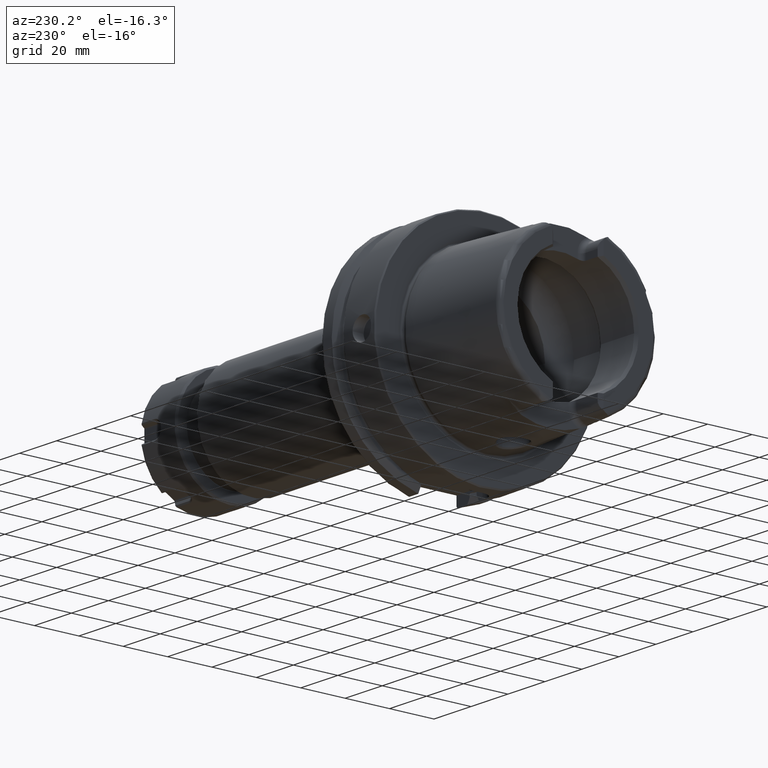
[diagram: clean part render]
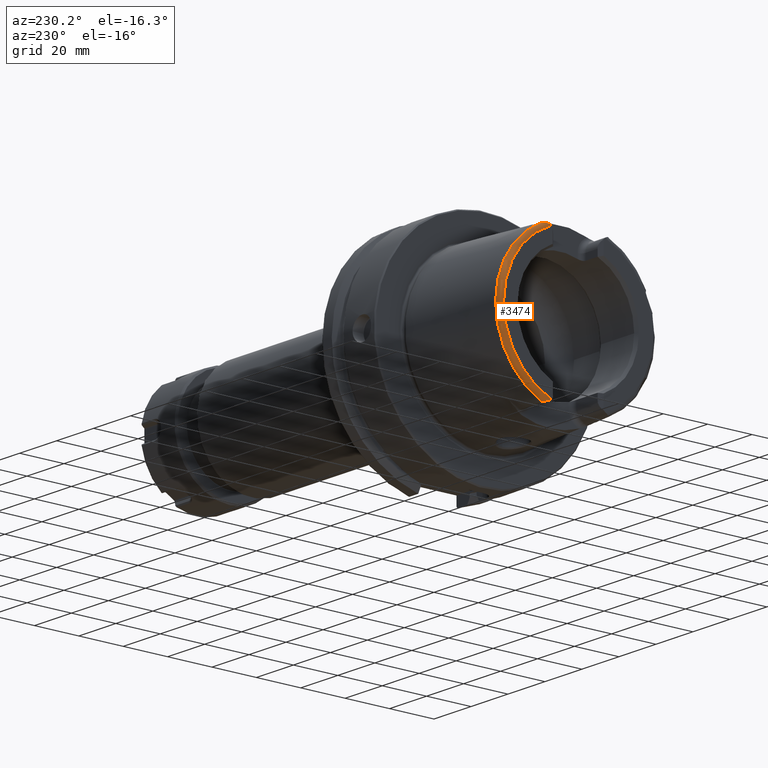
[diagram: same view with one face highlighted and labeled with its STEP entity id]
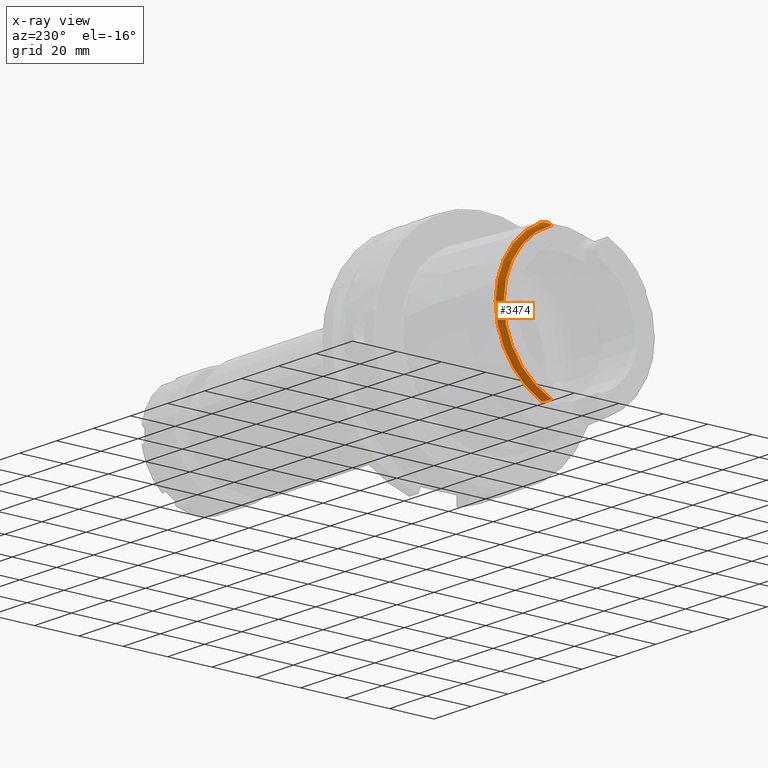
[diagram: x-ray of the same camera — body ghosted, the highlighted face saturated]
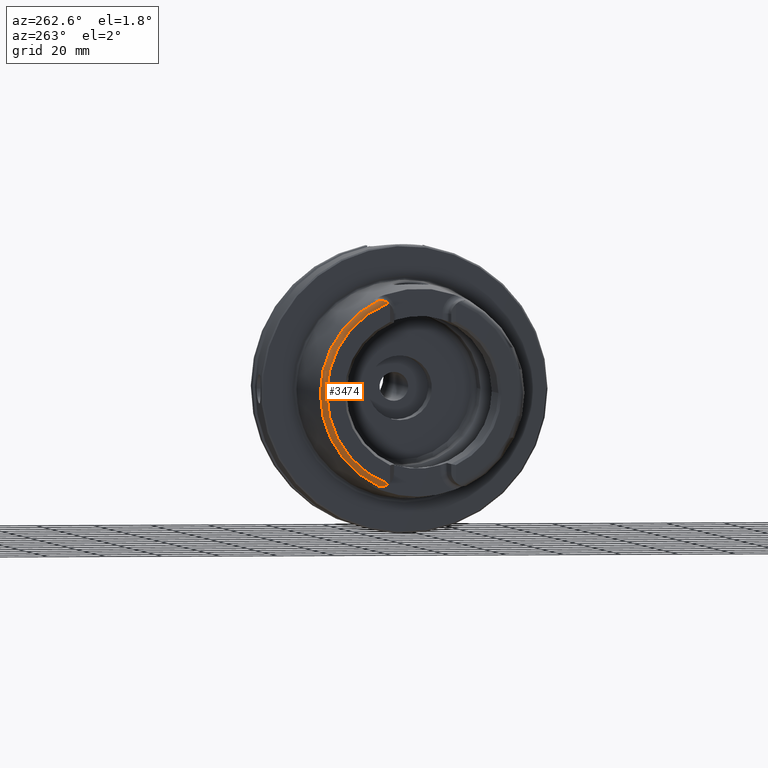
[diagram: same view with one face highlighted and labeled with its STEP entity id]
A machine part, auxiliary view. The second image highlights one B-rep face of the part: STEP entity #3474.
The next image is the same camera in x-ray: the body ghosted, the highlighted face saturated — about 0% of this face is hidden behind the body in this view.
A second angle (auxiliary view) of the same face is appended — the face is thin or edge-on in the first view.
In plain terms, the highlighted toroidal blend (fillet) surface has major radius 33.6002 mm and minor (blend) radius 2 mm.
Its self-contained STEP definition (entity closure, byte-faithful):
#139=B_SPLINE_CURVE_WITH_KNOTS('',3,(#5173,#5174,#5175,#5176,#5177,#5178,
#5179,#5180,#5181,#5182,#5183,#5184),.UNSPECIFIED.,.F.,.F.,(4,2,2,2,2,4),
(-0.744485085130371,-0.701284148098642,-0.656581713087942,-0.531183195108755,
-0.406814905045421,-0.32076786300396),.UNSPECIFIED.);
#146=B_SPLINE_CURVE_WITH_KNOTS('',3,(#5329,#5330,#5331,#5332,#5333,#5334,
#5335,#5336,#5337,#5338,#5339,#5340),.UNSPECIFIED.,.F.,.F.,(4,2,2,2,2,4),
(-0.330492941280221,-0.267730672592689,-0.159783637268103,-0.0785649842435394,
-0.0319753598823862,-6.79221864796145E-5),.UNSPECIFIED.);
#400=TOROIDAL_SURFACE('',#3864,33.6001839277785,2.);
#510=FACE_OUTER_BOUND('',#721,.T.);
#721=EDGE_LOOP('',(#2785,#2786,#2787,#2788));
#1265=CIRCLE('',#3741,35.5976786130245);
#1328=CIRCLE('',#3863,33.6001839277785);
#1457=VERTEX_POINT('',#5170);
#1458=VERTEX_POINT('',#5172);
#1488=VERTEX_POINT('',#5319);
#1489=VERTEX_POINT('',#5328);
#1806=EDGE_CURVE('',#1458,#1457,#139,.T.);
#1842=EDGE_CURVE('',#1489,#1488,#146,.T.);
#1860=EDGE_CURVE('',#1458,#1488,#1265,.T.);
#2030=EDGE_CURVE('',#1457,#1489,#1328,.T.);
#2785=ORIENTED_EDGE('',*,*,#1842,.T.);
#2786=ORIENTED_EDGE('',*,*,#1860,.F.);
#2787=ORIENTED_EDGE('',*,*,#1806,.T.);
#2788=ORIENTED_EDGE('',*,*,#2030,.T.);
#3474=ADVANCED_FACE('',(#510),#400,.T.);
#3741=AXIS2_PLACEMENT_3D('',#5577,#4263,#4264);
#3863=AXIS2_PLACEMENT_3D('',#6492,#4563,#4564);
#3864=AXIS2_PLACEMENT_3D('',#6493,#4565,#4566);
#4263=DIRECTION('center_axis',(1.,0.,0.));
#4264=DIRECTION('ref_axis',(0.,0.,-1.));
#4563=DIRECTION('center_axis',(1.,0.,0.));
#4564=DIRECTION('ref_axis',(0.,0.,-1.));
#4565=DIRECTION('center_axis',(1.,0.,0.));
#4566=DIRECTION('ref_axis',(0.,0.,-1.));
#5170=CARTESIAN_POINT('',(-50.,12.0743049948301,-31.355757348091));
#5172=CARTESIAN_POINT('',(-48.1000748840304,15.0787152148571,-32.2463497175327));
#5173=CARTESIAN_POINT('Ctrl Pts',(-48.1000748840304,15.0787152148571,-32.2463497175327));
#5174=CARTESIAN_POINT('Ctrl Pts',(-48.2105289331959,15.0644723890649,-32.2469009162952));
#5175=CARTESIAN_POINT('Ctrl Pts',(-48.3152849211513,15.0274043790922,-32.2483365520296));
#5176=CARTESIAN_POINT('Ctrl Pts',(-48.5158350355592,14.9227249886344,-32.2501807122049));
#5177=CARTESIAN_POINT('Ctrl Pts',(-48.6114759122292,14.8539486337751,-32.2504380099703));
#5178=CARTESIAN_POINT('Ctrl Pts',(-48.9444340259589,14.5699075364914,-32.2439932048825));
#5179=CARTESIAN_POINT('Ctrl Pts',(-49.1873237794489,14.2618237213855,-32.2229124522755));
#5180=CARTESIAN_POINT('Ctrl Pts',(-49.6096022065355,13.5557805634606,-32.0777680620402));
#5181=CARTESIAN_POINT('Ctrl Pts',(-49.7790094341757,13.1775605707035,-31.9575317726829));
#5182=CARTESIAN_POINT('Ctrl Pts',(-49.9573633441756,12.558596693048,-31.6661869684752));
#5183=CARTESIAN_POINT('Ctrl Pts',(-50.,12.3094122367882,-31.5218463066117));
#5184=CARTESIAN_POINT('Ctrl Pts',(-50.,12.0743049948301,-31.355757348091));
#5319=CARTESIAN_POINT('',(-48.1000748840304,15.0787152148571,32.2463497175327));
#5328=CARTESIAN_POINT('',(-50.,12.0743049948301,31.355757348091));
#5329=CARTESIAN_POINT('Ctrl Pts',(-50.,12.0743049948301,31.355757348091));
#5330=CARTESIAN_POINT('Ctrl Pts',(-50.,12.2864160042029,31.5056008677721));
#5331=CARTESIAN_POINT('Ctrl Pts',(-49.9651812414519,12.5182840828269,31.6438016135977));
#5332=CARTESIAN_POINT('Ctrl Pts',(-49.7800952926341,13.1934814711232,31.9701190766009));
#5333=CARTESIAN_POINT('Ctrl Pts',(-49.5793805506894,13.6220310736951,32.0976134655659));
#5334=CARTESIAN_POINT('Ctrl Pts',(-49.170216000735,14.2749893309021,32.2194840260055));
#5335=CARTESIAN_POINT('Ctrl Pts',(-48.9762638716763,14.5215824129495,32.2396097025416));
#5336=CARTESIAN_POINT('Ctrl Pts',(-48.6666306582889,14.8133702905837,32.2505591140316));
#5337=CARTESIAN_POINT('Ctrl Pts',(-48.5389792055843,14.9127554064334,32.2504492219699));
#5338=CARTESIAN_POINT('Ctrl Pts',(-48.3058528414878,15.0307034754738,32.2482068363322));
#5339=CARTESIAN_POINT('Ctrl Pts',(-48.2055479344945,15.0651146787529,32.2468760596209));
#5340=CARTESIAN_POINT('Ctrl Pts',(-48.1000748840303,15.0787152148571,32.2463497175327));
#5577=CARTESIAN_POINT('Origin',(-48.1000748840304,0.,0.));
#6492=CARTESIAN_POINT('Origin',(-50.,0.,0.));
#6493=CARTESIAN_POINT('Origin',(-48.,0.,0.));